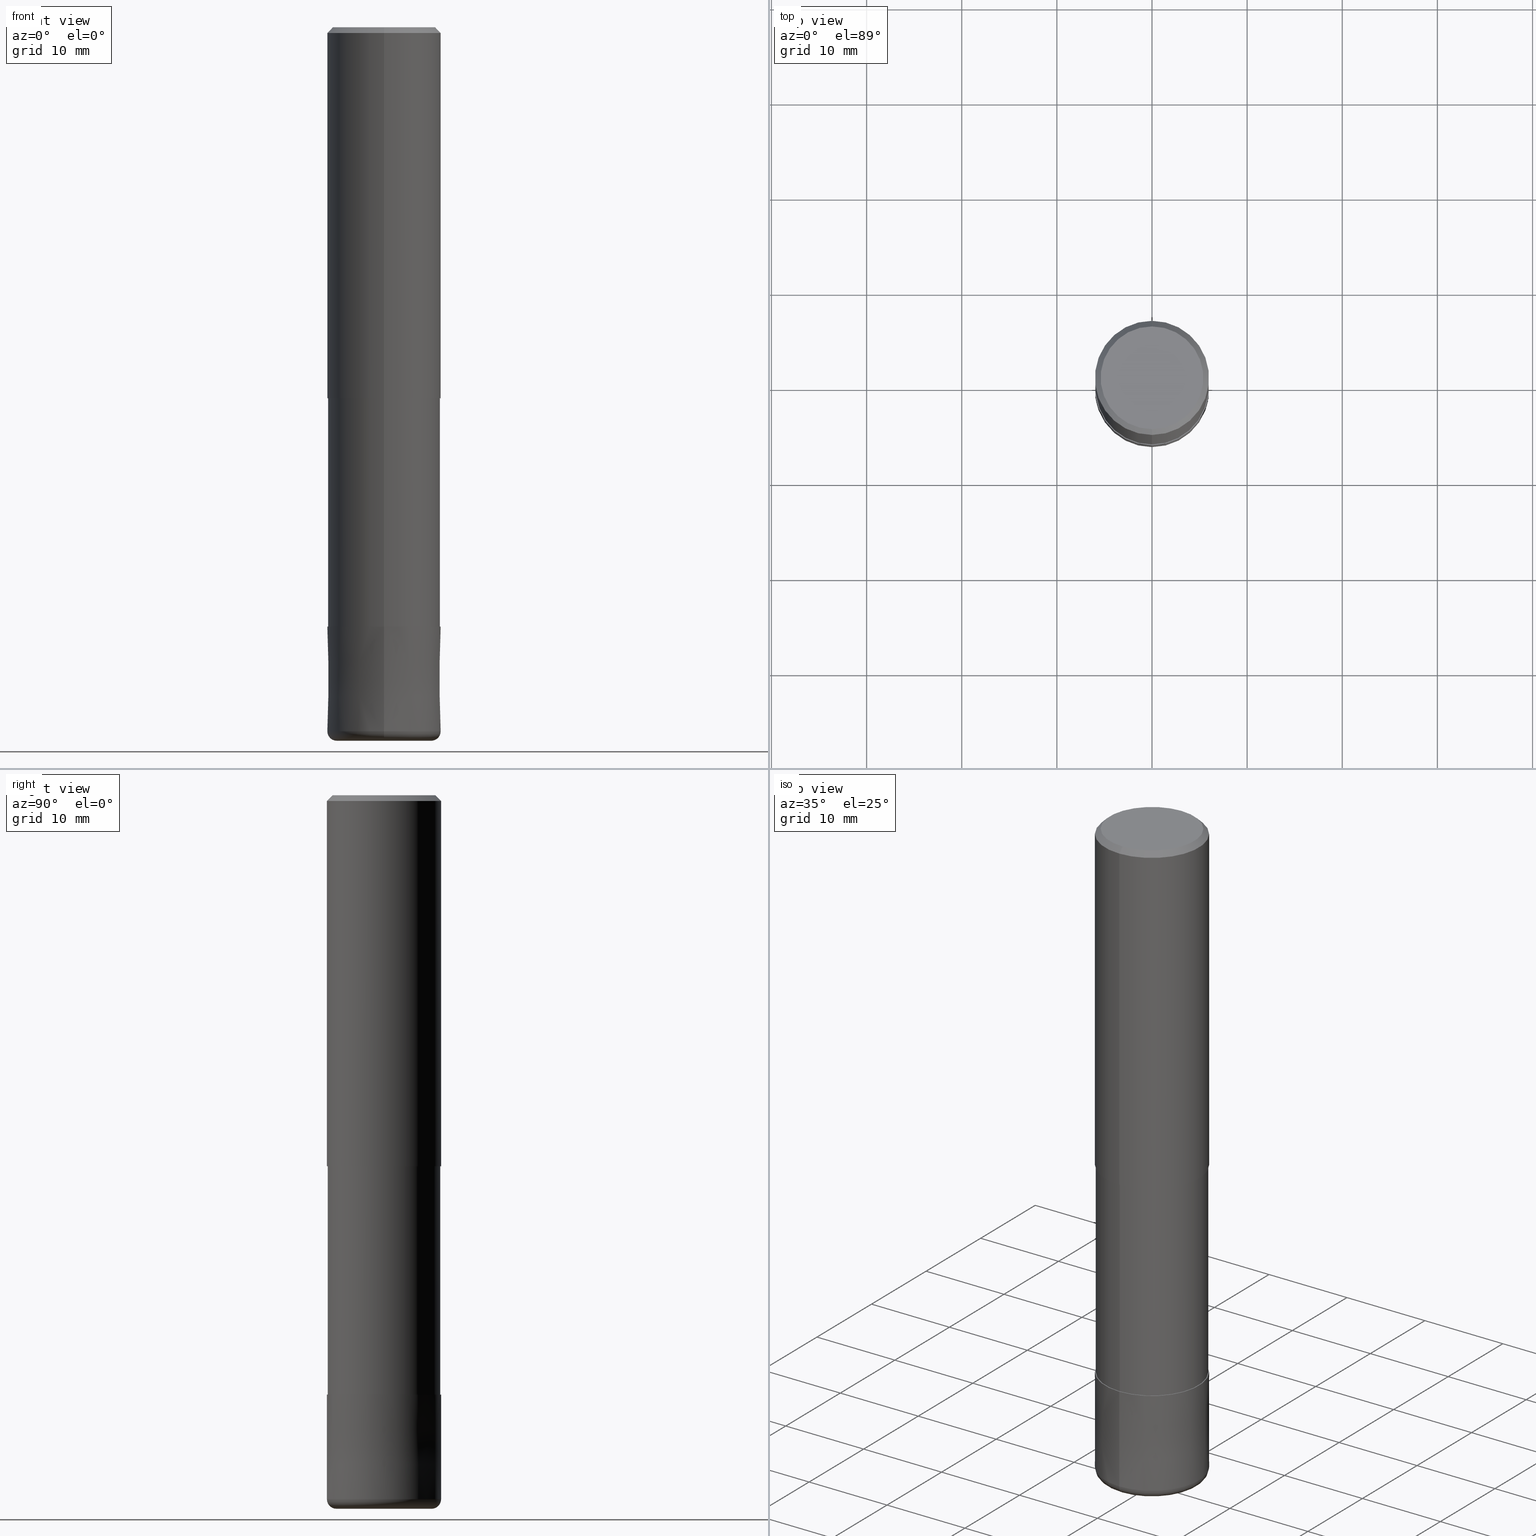
[diagram: canonical four-view strip — front | top / right | iso, engineering-drawing reading convention]
A machine part, canonical four-view strip (front | top / right | iso — engineering-drawing reading convention). The complete STEP part file that produces these views, byte-faithful:
ISO-10303-21;
HEADER;
FILE_DESCRIPTION(('no description'),'unknown implementation level');
FILE_NAME('HRRS4120-10-36S-Huellk.stp','  ',('CIMSOURCE GmbH'),('CADClick - KiM GmbH - www.kimweb.de'),'unknown preprocess','ACIS','unknown authorization');
FILE_SCHEMA(('automotive_design'));
ENDSEC;
DATA;
#1=MECHANICAL_DESIGN_GEOMETRIC_PRESENTATION_REPRESENTATION(' ',(#14,#15,#16,#17,#18,#19,#20,#21,#22,#23,#24,#25,#26,#27,#28,#29,#30,#31,#32,#33,#34,#35,#36,#37,#38,#39,#40,#41,#42,#43,#44,#45,#46,#47,#48,#49,#50,#51,#52,#53,#54,#55,#56,#57,#58,#59,#60,#61,#62,#63,#64,#65,#66,#67,#68,#69,#70,#71,#72),#10);
#2=PRODUCT_DEFINITION_CONTEXT('',#73,'design');
#3=APPLICATION_PROTOCOL_DEFINITION('INTERNATIONAL STANDARD','automotive_design',1994,#73);
#4=PRODUCT_CATEGORY_RELATIONSHIP('NONE','NONE',#74,#75);
#5=SHAPE_DEFINITION_REPRESENTATION(#76,#77);
#6=PRODUCT_DEFINITION_CONTEXT('',#78,'design');
#7=APPLICATION_PROTOCOL_DEFINITION('INTERNATIONAL STANDARD','automotive_design',1994,#78);
#8=PRODUCT_CATEGORY_RELATIONSHIP('NONE','NONE',#79,#80);
#9=SHAPE_DEFINITION_REPRESENTATION(#81,#82);
#10= (GEOMETRIC_REPRESENTATION_CONTEXT(3)GLOBAL_UNCERTAINTY_ASSIGNED_CONTEXT((#85))GLOBAL_UNIT_ASSIGNED_CONTEXT((#87,#88,#89))REPRESENTATION_CONTEXT('NONE','WORKSPACE'));
#14=STYLED_ITEM('',(#91),#92);
#15=STYLED_ITEM('',(#93),#94);
#16=STYLED_ITEM('',(#95),#96);
#17=STYLED_ITEM('',(#97),#98);
#18=STYLED_ITEM('',(#99),#100);
#19=STYLED_ITEM('',(#101),#102);
#20=STYLED_ITEM('',(#103),#104);
#21=STYLED_ITEM('',(#105),#106);
#22=STYLED_ITEM('',(#107),#108);
#23=STYLED_ITEM('',(#109),#110);
#24=STYLED_ITEM('',(#111),#112);
#25=STYLED_ITEM('',(#113),#114);
#26=STYLED_ITEM('',(#115),#116);
#27=STYLED_ITEM('',(#117),#118);
#28=STYLED_ITEM('',(#119),#120);
#29=STYLED_ITEM('',(#121),#122);
#30=STYLED_ITEM('',(#123),#124);
#31=STYLED_ITEM('',(#125),#126);
#32=STYLED_ITEM('',(#127),#128);
#33=STYLED_ITEM('',(#129),#130);
#34=STYLED_ITEM('',(#131),#132);
#35=STYLED_ITEM('',(#133),#134);
#36=STYLED_ITEM('',(#135),#136);
#37=STYLED_ITEM('',(#137),#138);
#38=STYLED_ITEM('',(#139),#140);
#39=STYLED_ITEM('',(#141),#142);
#40=STYLED_ITEM('',(#143),#144);
#41=STYLED_ITEM('',(#145),#146);
#42=STYLED_ITEM('',(#147),#148);
#43=STYLED_ITEM('',(#149),#150);
#44=STYLED_ITEM('',(#151),#152);
#45=STYLED_ITEM('',(#153),#154);
#46=STYLED_ITEM('',(#155),#156);
#47=STYLED_ITEM('',(#157),#158);
#48=STYLED_ITEM('',(#159),#160);
#49=STYLED_ITEM('',(#161),#162);
#50=STYLED_ITEM('',(#163),#164);
#51=STYLED_ITEM('',(#165),#166);
#52=STYLED_ITEM('',(#167),#168);
#53=STYLED_ITEM('',(#169),#170);
#54=STYLED_ITEM('',(#171),#172);
#55=STYLED_ITEM('',(#173),#174);
#56=STYLED_ITEM('',(#175),#176);
#57=STYLED_ITEM('',(#177),#178);
#58=STYLED_ITEM('',(#179),#180);
#59=STYLED_ITEM('',(#181),#182);
#60=STYLED_ITEM('',(#183),#184);
#61=STYLED_ITEM('',(#185),#186);
#62=STYLED_ITEM('',(#187),#188);
#63=STYLED_ITEM('',(#189),#190);
#64=STYLED_ITEM('',(#191),#192);
#65=STYLED_ITEM('',(#193),#194);
#66=STYLED_ITEM('',(#195),#196);
#67=STYLED_ITEM('',(#197),#198);
#68=STYLED_ITEM('',(#199),#200);
#69=STYLED_ITEM('',(#201),#202);
#70=STYLED_ITEM('',(#203),#204);
#71=STYLED_ITEM('',(#205),#206);
#72=STYLED_ITEM('',(#207),#208);
#73=APPLICATION_CONTEXT(' ');
#74=PRODUCT_CATEGORY('part','NONE');
#75=PRODUCT_RELATED_PRODUCT_CATEGORY('detail',' ',(#209));
#76=PRODUCT_DEFINITION_SHAPE('NONE','NONE',#210);
#77=ADVANCED_BREP_SHAPE_REPRESENTATION('1',(#164,#211),#10);
#78=APPLICATION_CONTEXT(' ');
#79=PRODUCT_CATEGORY('part','NONE');
#80=PRODUCT_RELATED_PRODUCT_CATEGORY('detail',' ',(#212));
#81=PRODUCT_DEFINITION_SHAPE('NONE','NONE',#213);
#82=ADVANCED_BREP_SHAPE_REPRESENTATION('2',(#124,#214),#10);
#85=UNCERTAINTY_MEASURE_WITH_UNIT(LENGTH_MEASURE(1.0E-006),#87,'','');
#87= (CONVERSION_BASED_UNIT('MILLIMETRE',#217)LENGTH_UNIT()NAMED_UNIT(#220));
#88= (NAMED_UNIT(#222)PLANE_ANGLE_UNIT()SI_UNIT($,.RADIAN.));
#89= (NAMED_UNIT(#222)SOLID_ANGLE_UNIT()SI_UNIT($,.STERADIAN.));
#91=PRESENTATION_STYLE_ASSIGNMENT((#228));
#92=EDGE_CURVE('',#118,#192,#229,.T.);
#93=PRESENTATION_STYLE_ASSIGNMENT((#230));
#94=ADVANCED_FACE('',(#231),#232,.T.);
#95=PRESENTATION_STYLE_ASSIGNMENT((#233));
#96=EDGE_CURVE('',#168,#206,#234,.T.);
#97=PRESENTATION_STYLE_ASSIGNMENT((#235));
#98=VERTEX_POINT('',#236);
#99=PRESENTATION_STYLE_ASSIGNMENT((#237));
#100=VERTEX_POINT('',#238);
#101=PRESENTATION_STYLE_ASSIGNMENT((#239));
#102=EDGE_CURVE('',#114,#110,#240,.T.);
#103=PRESENTATION_STYLE_ASSIGNMENT((#241));
#104=EDGE_CURVE('',#152,#144,#242,.T.);
#105=PRESENTATION_STYLE_ASSIGNMENT((#243));
#106=ADVANCED_FACE('',(#244),#245,.T.);
#107=PRESENTATION_STYLE_ASSIGNMENT((#246));
#108=ADVANCED_FACE('',(#247),#248,.T.);
#109=PRESENTATION_STYLE_ASSIGNMENT((#249));
#110=VERTEX_POINT('',#250);
#111=PRESENTATION_STYLE_ASSIGNMENT((#251));
#112=EDGE_CURVE('',#184,#100,#252,.T.);
#113=PRESENTATION_STYLE_ASSIGNMENT((#253));
#114=VERTEX_POINT('',#254);
#115=PRESENTATION_STYLE_ASSIGNMENT((#255));
#116=ADVANCED_FACE('',(#256),#257,.T.);
#117=PRESENTATION_STYLE_ASSIGNMENT((#258));
#118=VERTEX_POINT('',#259);
#119=PRESENTATION_STYLE_ASSIGNMENT((#260));
#120=EDGE_CURVE('',#152,#98,#261,.T.);
#121=PRESENTATION_STYLE_ASSIGNMENT((#262));
#122=VERTEX_POINT('',#263);
#123=PRESENTATION_STYLE_ASSIGNMENT((#264));
#124=MANIFOLD_SOLID_BREP('2',#265);
#125=PRESENTATION_STYLE_ASSIGNMENT((#266));
#126=ADVANCED_FACE('',(#267),#268,.T.);
#127=PRESENTATION_STYLE_ASSIGNMENT((#269));
#128=EDGE_CURVE('',#182,#110,#270,.T.);
#129=PRESENTATION_STYLE_ASSIGNMENT((#271));
#130=ADVANCED_FACE('',(#272),#273,.T.);
#131=PRESENTATION_STYLE_ASSIGNMENT((#274));
#132=EDGE_CURVE('',#122,#118,#275,.T.);
#133=PRESENTATION_STYLE_ASSIGNMENT((#276));
#134=ADVANCED_FACE('',(#277),#278,.T.);
#135=PRESENTATION_STYLE_ASSIGNMENT((#279));
#136=EDGE_CURVE('',#98,#160,#280,.T.);
#137=PRESENTATION_STYLE_ASSIGNMENT((#281));
#138=EDGE_CURVE('',#144,#152,#282,.T.);
#139=PRESENTATION_STYLE_ASSIGNMENT((#283));
#140=ADVANCED_FACE('',(#284),#285,.T.);
#141=PRESENTATION_STYLE_ASSIGNMENT((#286));
#142=ADVANCED_FACE('',(#287,#288),#289,.T.);
#143=PRESENTATION_STYLE_ASSIGNMENT((#290));
#144=VERTEX_POINT('',#291);
#145=PRESENTATION_STYLE_ASSIGNMENT((#292));
#146=ADVANCED_FACE('',(#293),#294,.T.);
#147=PRESENTATION_STYLE_ASSIGNMENT((#295));
#148=EDGE_CURVE('',#114,#192,#296,.T.);
#149=PRESENTATION_STYLE_ASSIGNMENT((#297));
#150=ADVANCED_FACE('',(#298),#299,.T.);
#151=PRESENTATION_STYLE_ASSIGNMENT((#300));
#152=VERTEX_POINT('',#301);
#153=PRESENTATION_STYLE_ASSIGNMENT((#302));
#154=EDGE_CURVE('',#178,#206,#303,.T.);
#155=PRESENTATION_STYLE_ASSIGNMENT((#304));
#156=ADVANCED_FACE('',(#305),#306,.T.);
#157=PRESENTATION_STYLE_ASSIGNMENT((#307));
#158=EDGE_CURVE('',#100,#152,#308,.T.);
#159=PRESENTATION_STYLE_ASSIGNMENT((#309));
#160=VERTEX_POINT('',#310);
#161=PRESENTATION_STYLE_ASSIGNMENT((#311));
#162=EDGE_CURVE('',#192,#182,#312,.T.);
#163=PRESENTATION_STYLE_ASSIGNMENT((#313));
#164=MANIFOLD_SOLID_BREP('1',#314);
#165=PRESENTATION_STYLE_ASSIGNMENT((#315));
#166=ADVANCED_FACE('',(#316),#317,.T.);
#167=PRESENTATION_STYLE_ASSIGNMENT((#318));
#168=VERTEX_POINT('',#319);
#169=PRESENTATION_STYLE_ASSIGNMENT((#320));
#170=ADVANCED_FACE('',(#321),#322,.T.);
#171=PRESENTATION_STYLE_ASSIGNMENT((#323));
#172=VERTEX_POINT('',#324);
#173=PRESENTATION_STYLE_ASSIGNMENT((#325));
#174=EDGE_CURVE('',#160,#98,#326,.T.);
#175=PRESENTATION_STYLE_ASSIGNMENT((#327));
#176=EDGE_CURVE('',#206,#168,#328,.T.);
#177=PRESENTATION_STYLE_ASSIGNMENT((#329));
#178=VERTEX_POINT('',#330);
#179=PRESENTATION_STYLE_ASSIGNMENT((#331));
#180=EDGE_CURVE('',#182,#122,#332,.T.);
#181=PRESENTATION_STYLE_ASSIGNMENT((#333));
#182=VERTEX_POINT('',#334);
#183=PRESENTATION_STYLE_ASSIGNMENT((#335));
#184=VERTEX_POINT('',#336);
#185=PRESENTATION_STYLE_ASSIGNMENT((#337));
#186=ADVANCED_FACE('',(#338),#339,.T.);
#187=PRESENTATION_STYLE_ASSIGNMENT((#340));
#188=EDGE_CURVE('',#110,#114,#341,.T.);
#189=PRESENTATION_STYLE_ASSIGNMENT((#342));
#190=EDGE_CURVE('',#178,#172,#343,.T.);
#191=PRESENTATION_STYLE_ASSIGNMENT((#344));
#192=VERTEX_POINT('',#345);
#193=PRESENTATION_STYLE_ASSIGNMENT((#346));
#194=EDGE_CURVE('',#168,#172,#347,.T.);
#195=PRESENTATION_STYLE_ASSIGNMENT((#348));
#196=EDGE_CURVE('',#182,#192,#349,.T.);
#197=PRESENTATION_STYLE_ASSIGNMENT((#350));
#198=EDGE_CURVE('',#160,#144,#351,.T.);
#199=PRESENTATION_STYLE_ASSIGNMENT((#352));
#200=EDGE_CURVE('',#172,#178,#353,.T.);
#201=PRESENTATION_STYLE_ASSIGNMENT((#354));
#202=EDGE_CURVE('',#100,#184,#355,.T.);
#203=PRESENTATION_STYLE_ASSIGNMENT((#356));
#204=EDGE_CURVE('',#118,#122,#357,.T.);
#205=PRESENTATION_STYLE_ASSIGNMENT((#358));
#206=VERTEX_POINT('',#359);
#207=PRESENTATION_STYLE_ASSIGNMENT((#360));
#208=EDGE_CURVE('',#144,#184,#361,.T.);
#209=PRODUCT('1','1','PART-1-DESC',(#362));
#210=PRODUCT_DEFINITION('NONE','NONE',#363,#2);
#211=AXIS2_PLACEMENT_3D('',#364,#365,#366);
#212=PRODUCT('2','2','PART-2-DESC',(#367));
#213=PRODUCT_DEFINITION('NONE','NONE',#368,#6);
#214=AXIS2_PLACEMENT_3D('',#369,#370,#371);
#217=LENGTH_MEASURE_WITH_UNIT(LENGTH_MEASURE(1.0),#372);
#220=DIMENSIONAL_EXPONENTS(1.0,0.0,0.0,0.0,0.0,0.0,0.0);
#222=DIMENSIONAL_EXPONENTS(0.0,0.0,0.0,0.0,0.0,0.0,0.0);
#228=CURVE_STYLE('',#373,POSITIVE_LENGTH_MEASURE(1.0E-006),#374);
#229=LINE('',#375,#376);
#230=SURFACE_STYLE_USAGE(.BOTH.,#377);
#231=FACE_OUTER_BOUND('',#378,.T.);
#232=PLANE('',#379);
#233=CURVE_STYLE('',#380,POSITIVE_LENGTH_MEASURE(1.0E-006),#381);
#234=CIRCLE('',#382,5.90995);
#235=POINT_STYLE(' ',#383,POSITIVE_LENGTH_MEASURE(1.0E-006),#384);
#236=CARTESIAN_POINT('',(6.61287431064084E-016,-5.4,0.0));
#237=POINT_STYLE(' ',#385,POSITIVE_LENGTH_MEASURE(1.0E-006),#386);
#238=CARTESIAN_POINT('',(7.34763812293426E-016,-6.0,-39.0));
#239=CURVE_STYLE('',#387,POSITIVE_LENGTH_MEASURE(1.0E-006),#388);
#240=CIRCLE('',#389,5.0);
#241=CURVE_STYLE('',#390,POSITIVE_LENGTH_MEASURE(1.0E-006),#391);
#242=CIRCLE('',#392,6.0);
#243=SURFACE_STYLE_USAGE(.BOTH.,#393);
#244=FACE_OUTER_BOUND('',#394,.T.);
#245=PLANE('',#395);
#246=SURFACE_STYLE_USAGE(.BOTH.,#396);
#247=FACE_OUTER_BOUND('',#397,.T.);
#248=TOROIDAL_SURFACE('',#398,5.0,1.0);
#249=POINT_STYLE(' ',#399,POSITIVE_LENGTH_MEASURE(1.0E-006),#400);
#250=CARTESIAN_POINT('',(6.12303176911189E-016,-5.0,-75.0));
#251=CURVE_STYLE('',#401,POSITIVE_LENGTH_MEASURE(1.0E-006),#402);
#252=CIRCLE('',#403,6.0);
#253=POINT_STYLE(' ',#404,POSITIVE_LENGTH_MEASURE(1.0E-006),#405);
#254=CARTESIAN_POINT('',(0.0,5.0,-75.0));
#255=SURFACE_STYLE_USAGE(.BOTH.,#406);
#256=FACE_OUTER_BOUND('',#407,.T.);
#257=CYLINDRICAL_SURFACE('',#408,6.0);
#258=POINT_STYLE(' ',#409,POSITIVE_LENGTH_MEASURE(1.0E-006),#410);
#259=CARTESIAN_POINT('',(0.0,5.9999,-63.0));
#260=CURVE_STYLE('',#411,POSITIVE_LENGTH_MEASURE(1.0E-006),#412);
#261=LINE('',#413,#414);
#262=POINT_STYLE(' ',#415,POSITIVE_LENGTH_MEASURE(1.0E-006),#416);
#263=CARTESIAN_POINT('',(7.34751566229888E-016,-5.9999,-63.0));
#264=SURFACE_STYLE_USAGE(.BOTH.,#417);
#265=CLOSED_SHELL('',(#108,#126,#170,#140,#166,#146));
#266=SURFACE_STYLE_USAGE(.BOTH.,#418);
#267=FACE_OUTER_BOUND('',#419,.T.);
#268=CONICAL_SURFACE('',#420,5.99995,9.09090909063747E-006);
#269=CURVE_STYLE('',#421,POSITIVE_LENGTH_MEASURE(1.0E-006),#422);
#270=CIRCLE('',#423,1.0);
#271=SURFACE_STYLE_USAGE(.BOTH.,#424);
#272=FACE_OUTER_BOUND('',#425,.T.);
#273=CONICAL_SURFACE('',#426,5.7,0.785398163397447);
#274=CURVE_STYLE('',#427,POSITIVE_LENGTH_MEASURE(1.0E-006),#428);
#275=CIRCLE('',#429,5.9999);
#276=SURFACE_STYLE_USAGE(.BOTH.,#430);
#277=FACE_OUTER_BOUND('',#431,.T.);
#278=CYLINDRICAL_SURFACE('',#432,5.90995);
#279=CURVE_STYLE('',#433,POSITIVE_LENGTH_MEASURE(1.0E-006),#434);
#280=CIRCLE('',#435,5.4);
#281=CURVE_STYLE('',#436,POSITIVE_LENGTH_MEASURE(1.0E-006),#437);
#282=CIRCLE('',#438,6.0);
#283=SURFACE_STYLE_USAGE(.BOTH.,#439);
#284=FACE_OUTER_BOUND('',#440,.T.);
#285=CONICAL_SURFACE('',#441,5.99995,9.09090909063747E-006);
#286=SURFACE_STYLE_USAGE(.BOTH.,#442);
#287=FACE_OUTER_BOUND('',#443,.T.);
#288=FACE_BOUND('',#444,.T.);
#289=PLANE('',#445);
#290=POINT_STYLE(' ',#446,POSITIVE_LENGTH_MEASURE(1.0E-006),#447);
#291=CARTESIAN_POINT('',(0.0,6.0,-0.600000000000001));
#292=SURFACE_STYLE_USAGE(.BOTH.,#448);
#293=FACE_OUTER_BOUND('',#449,.T.);
#294=PLANE('',#450);
#295=CURVE_STYLE('',#451,POSITIVE_LENGTH_MEASURE(1.0E-006),#452);
#296=CIRCLE('',#453,1.0);
#297=SURFACE_STYLE_USAGE(.BOTH.,#454);
#298=FACE_OUTER_BOUND('',#455,.T.);
#299=CYLINDRICAL_SURFACE('',#456,6.0);
#300=POINT_STYLE(' ',#457,POSITIVE_LENGTH_MEASURE(1.0E-006),#458);
#301=CARTESIAN_POINT('',(7.34763812293426E-016,-6.0,-0.600000000000001));
#302=CURVE_STYLE('',#459,POSITIVE_LENGTH_MEASURE(1.0E-006),#460);
#303=LINE('',#461,#462);
#304=SURFACE_STYLE_USAGE(.BOTH.,#463);
#305=FACE_OUTER_BOUND('',#464,.T.);
#306=CONICAL_SURFACE('',#465,5.7,0.785398163397447);
#307=CURVE_STYLE('',#466,POSITIVE_LENGTH_MEASURE(1.0E-006),#467);
#308=LINE('',#468,#469);
#309=POINT_STYLE(' ',#470,POSITIVE_LENGTH_MEASURE(1.0E-006),#471);
#310=CARTESIAN_POINT('',(0.0,5.4,0.0));
#311=CURVE_STYLE('',#472,POSITIVE_LENGTH_MEASURE(1.0E-006),#473);
#312=CIRCLE('',#474,6.0);
#313=SURFACE_STYLE_USAGE(.BOTH.,#475);
#314=CLOSED_SHELL('',(#186,#150,#130,#142,#106,#156,#116,#134,#94));
#315=SURFACE_STYLE_USAGE(.BOTH.,#476);
#316=FACE_OUTER_BOUND('',#477,.T.);
#317=TOROIDAL_SURFACE('',#478,5.0,1.0);
#318=POINT_STYLE(' ',#479,POSITIVE_LENGTH_MEASURE(1.0E-006),#480);
#319=CARTESIAN_POINT('',(0.0,5.90995,-39.0));
#320=SURFACE_STYLE_USAGE(.BOTH.,#481);
#321=FACE_OUTER_BOUND('',#482,.T.);
#322=PLANE('',#483);
#323=POINT_STYLE(' ',#484,POSITIVE_LENGTH_MEASURE(1.0E-006),#485);
#324=CARTESIAN_POINT('',(0.0,5.90995,-63.0));
#325=CURVE_STYLE('',#486,POSITIVE_LENGTH_MEASURE(1.0E-006),#487);
#326=CIRCLE('',#488,5.4);
#327=CURVE_STYLE('',#489,POSITIVE_LENGTH_MEASURE(1.0E-006),#490);
#328=CIRCLE('',#491,5.90995);
#329=POINT_STYLE(' ',#492,POSITIVE_LENGTH_MEASURE(1.0E-006),#493);
#330=CARTESIAN_POINT('',(7.23736232077256E-016,-5.90995,-63.0));
#331=CURVE_STYLE('',#494,POSITIVE_LENGTH_MEASURE(1.0E-006),#495);
#332=LINE('',#496,#497);
#333=POINT_STYLE(' ',#498,POSITIVE_LENGTH_MEASURE(1.0E-006),#499);
#334=CARTESIAN_POINT('',(7.34763812293426E-016,-6.0,-74.0));
#335=POINT_STYLE(' ',#500,POSITIVE_LENGTH_MEASURE(1.0E-006),#501);
#336=CARTESIAN_POINT('',(0.0,6.0,-39.0));
#337=SURFACE_STYLE_USAGE(.BOTH.,#502);
#338=FACE_OUTER_BOUND('',#503,.T.);
#339=CYLINDRICAL_SURFACE('',#504,5.90995);
#340=CURVE_STYLE('',#505,POSITIVE_LENGTH_MEASURE(1.0E-006),#506);
#341=CIRCLE('',#507,5.0);
#342=CURVE_STYLE('',#508,POSITIVE_LENGTH_MEASURE(1.0E-006),#509);
#343=CIRCLE('',#510,5.90995);
#344=POINT_STYLE(' ',#511,POSITIVE_LENGTH_MEASURE(1.0E-006),#512);
#345=CARTESIAN_POINT('',(0.0,6.0,-74.0));
#346=CURVE_STYLE('',#513,POSITIVE_LENGTH_MEASURE(1.0E-006),#514);
#347=LINE('',#515,#516);
#348=CURVE_STYLE('',#517,POSITIVE_LENGTH_MEASURE(1.0E-006),#518);
#349=CIRCLE('',#519,6.0);
#350=CURVE_STYLE('',#520,POSITIVE_LENGTH_MEASURE(1.0E-006),#521);
#351=LINE('',#522,#523);
#352=CURVE_STYLE('',#524,POSITIVE_LENGTH_MEASURE(1.0E-006),#525);
#353=CIRCLE('',#526,5.90995);
#354=CURVE_STYLE('',#527,POSITIVE_LENGTH_MEASURE(1.0E-006),#528);
#355=CIRCLE('',#529,6.0);
#356=CURVE_STYLE('',#530,POSITIVE_LENGTH_MEASURE(1.0E-006),#531);
#357=CIRCLE('',#532,5.9999);
#358=POINT_STYLE(' ',#533,POSITIVE_LENGTH_MEASURE(1.0E-006),#534);
#359=CARTESIAN_POINT('',(7.23736232077256E-016,-5.90995,-39.0));
#360=CURVE_STYLE('',#535,POSITIVE_LENGTH_MEASURE(1.0E-006),#536);
#361=LINE('',#537,#538);
#362=PRODUCT_CONTEXT('',#73,'mechanical');
#363=PRODUCT_DEFINITION_FORMATION_WITH_SPECIFIED_SOURCE(' ','NONE',#209,.NOT_KNOWN.);
#364=CARTESIAN_POINT('',(0.0,0.0,0.0));
#365=DIRECTION('',(0.0,0.0,1.0));
#366=DIRECTION('',(1.0,0.0,0.0));
#367=PRODUCT_CONTEXT('',#78,'mechanical');
#368=PRODUCT_DEFINITION_FORMATION_WITH_SPECIFIED_SOURCE(' ','NONE',#212,.NOT_KNOWN.);
#369=CARTESIAN_POINT('',(0.0,0.0,0.0));
#370=DIRECTION('',(0.0,0.0,1.0));
#371=DIRECTION('',(1.0,0.0,0.0));
#372= (NAMED_UNIT(#220)LENGTH_UNIT()SI_UNIT(.MILLI.,.METRE.));
#373=DRAUGHTING_PRE_DEFINED_CURVE_FONT('continuous');
#374=COLOUR_RGB('',0.800000011920929,0.800000011920929,0.800000011920929);
#375=CARTESIAN_POINT('',(-7.34757689261658E-016,5.99995,-68.5));
#376=VECTOR('',#540,1.0);
#377=SURFACE_SIDE_STYLE('',(#541));
#378=EDGE_LOOP('',(#542,#543));
#379=AXIS2_PLACEMENT_3D('',#544,#545,#546);
#380=DRAUGHTING_PRE_DEFINED_CURVE_FONT('continuous');
#381=COLOUR_RGB('',0.498039215803146,0.498039215803146,0.498039215803146);
#382=AXIS2_PLACEMENT_3D('',#547,#548,#549);
#383=PRE_DEFINED_MARKER('');
#384=COLOUR_RGB('',0.498039215803146,0.498039215803146,0.498039215803146);
#385=PRE_DEFINED_MARKER('');
#386=COLOUR_RGB('',0.498039215803146,0.498039215803146,0.498039215803146);
#387=DRAUGHTING_PRE_DEFINED_CURVE_FONT('continuous');
#388=COLOUR_RGB('',0.800000011920929,0.800000011920929,0.800000011920929);
#389=AXIS2_PLACEMENT_3D('',#550,#551,#552);
#390=DRAUGHTING_PRE_DEFINED_CURVE_FONT('continuous');
#391=COLOUR_RGB('',0.498039215803146,0.498039215803146,0.498039215803146);
#392=AXIS2_PLACEMENT_3D('',#553,#554,#555);
#393=SURFACE_SIDE_STYLE('',(#556));
#394=EDGE_LOOP('',(#557,#558));
#395=AXIS2_PLACEMENT_3D('',#559,#560,#561);
#396=SURFACE_SIDE_STYLE('',(#562));
#397=EDGE_LOOP('',(#563,#564,#565,#566));
#398=AXIS2_PLACEMENT_3D('',#567,#568,#569);
#399=PRE_DEFINED_MARKER('');
#400=COLOUR_RGB('',0.800000011920929,0.800000011920929,0.800000011920929);
#401=DRAUGHTING_PRE_DEFINED_CURVE_FONT('continuous');
#402=COLOUR_RGB('',0.498039215803146,0.498039215803146,0.498039215803146);
#403=AXIS2_PLACEMENT_3D('',#570,#571,#572);
#404=PRE_DEFINED_MARKER('');
#405=COLOUR_RGB('',0.800000011920929,0.800000011920929,0.800000011920929);
#406=SURFACE_SIDE_STYLE('',(#573));
#407=EDGE_LOOP('',(#574,#575,#576,#577));
#408=AXIS2_PLACEMENT_3D('',#578,#579,#580);
#409=PRE_DEFINED_MARKER('');
#410=COLOUR_RGB('',0.800000011920929,0.800000011920929,0.800000011920929);
#411=DRAUGHTING_PRE_DEFINED_CURVE_FONT('continuous');
#412=COLOUR_RGB('',0.498039215803146,0.498039215803146,0.498039215803146);
#413=CARTESIAN_POINT('',(6.98025621678755E-016,-5.7,-0.300000000000004));
#414=VECTOR('',#581,1.0);
#415=PRE_DEFINED_MARKER('');
#416=COLOUR_RGB('',0.800000011920929,0.800000011920929,0.800000011920929);
#417=SURFACE_SIDE_STYLE('',(#582));
#418=SURFACE_SIDE_STYLE('',(#583));
#419=EDGE_LOOP('',(#584,#585,#586,#587));
#420=AXIS2_PLACEMENT_3D('',#588,#589,#590);
#421=DRAUGHTING_PRE_DEFINED_CURVE_FONT('continuous');
#422=COLOUR_RGB('',0.800000011920929,0.800000011920929,0.800000011920929);
#423=AXIS2_PLACEMENT_3D('',#591,#592,#593);
#424=SURFACE_SIDE_STYLE('',(#594));
#425=EDGE_LOOP('',(#595,#596,#597,#598));
#426=AXIS2_PLACEMENT_3D('',#599,#600,#601);
#427=DRAUGHTING_PRE_DEFINED_CURVE_FONT('continuous');
#428=COLOUR_RGB('',0.800000011920929,0.800000011920929,0.800000011920929);
#429=AXIS2_PLACEMENT_3D('',#602,#603,#604);
#430=SURFACE_SIDE_STYLE('',(#605));
#431=EDGE_LOOP('',(#606,#607,#608,#609));
#432=AXIS2_PLACEMENT_3D('',#610,#611,#612);
#433=DRAUGHTING_PRE_DEFINED_CURVE_FONT('continuous');
#434=COLOUR_RGB('',0.498039215803146,0.498039215803146,0.498039215803146);
#435=AXIS2_PLACEMENT_3D('',#613,#614,#615);
#436=DRAUGHTING_PRE_DEFINED_CURVE_FONT('continuous');
#437=COLOUR_RGB('',0.498039215803146,0.498039215803146,0.498039215803146);
#438=AXIS2_PLACEMENT_3D('',#616,#617,#618);
#439=SURFACE_SIDE_STYLE('',(#619));
#440=EDGE_LOOP('',(#620,#621,#622,#623));
#441=AXIS2_PLACEMENT_3D('',#624,#625,#626);
#442=SURFACE_SIDE_STYLE('',(#627));
#443=EDGE_LOOP('',(#628,#629));
#444=EDGE_LOOP('',(#630,#631));
#445=AXIS2_PLACEMENT_3D('',#632,#633,#634);
#446=PRE_DEFINED_MARKER('');
#447=COLOUR_RGB('',0.498039215803146,0.498039215803146,0.498039215803146);
#448=SURFACE_SIDE_STYLE('',(#635));
#449=EDGE_LOOP('',(#636,#637));
#450=AXIS2_PLACEMENT_3D('',#638,#639,#640);
#451=DRAUGHTING_PRE_DEFINED_CURVE_FONT('continuous');
#452=COLOUR_RGB('',0.800000011920929,0.800000011920929,0.800000011920929);
#453=AXIS2_PLACEMENT_3D('',#641,#642,#643);
#454=SURFACE_SIDE_STYLE('',(#644));
#455=EDGE_LOOP('',(#645,#646,#647,#648));
#456=AXIS2_PLACEMENT_3D('',#649,#650,#651);
#457=PRE_DEFINED_MARKER('');
#458=COLOUR_RGB('',0.498039215803146,0.498039215803146,0.498039215803146);
#459=DRAUGHTING_PRE_DEFINED_CURVE_FONT('continuous');
#460=COLOUR_RGB('',0.498039215803146,0.498039215803146,0.498039215803146);
#461=CARTESIAN_POINT('',(7.23736232077256E-016,-5.90995,-51.0));
#462=VECTOR('',#652,1.0);
#463=SURFACE_SIDE_STYLE('',(#653));
#464=EDGE_LOOP('',(#654,#655,#656,#657));
#465=AXIS2_PLACEMENT_3D('',#658,#659,#660);
#466=DRAUGHTING_PRE_DEFINED_CURVE_FONT('continuous');
#467=COLOUR_RGB('',0.498039215803146,0.498039215803146,0.498039215803146);
#468=CARTESIAN_POINT('',(7.34763812293426E-016,-6.0,-19.8));
#469=VECTOR('',#661,1.0);
#470=PRE_DEFINED_MARKER('');
#471=COLOUR_RGB('',0.498039215803146,0.498039215803146,0.498039215803146);
#472=DRAUGHTING_PRE_DEFINED_CURVE_FONT('continuous');
#473=COLOUR_RGB('',0.800000011920929,0.800000011920929,0.800000011920929);
#474=AXIS2_PLACEMENT_3D('',#662,#663,#664);
#475=SURFACE_SIDE_STYLE('',(#665));
#476=SURFACE_SIDE_STYLE('',(#666));
#477=EDGE_LOOP('',(#667,#668,#669,#670));
#478=AXIS2_PLACEMENT_3D('',#671,#672,#673);
#479=PRE_DEFINED_MARKER('');
#480=COLOUR_RGB('',0.498039215803146,0.498039215803146,0.498039215803146);
#481=SURFACE_SIDE_STYLE('',(#674));
#482=EDGE_LOOP('',(#675,#676));
#483=AXIS2_PLACEMENT_3D('',#677,#678,#679);
#484=PRE_DEFINED_MARKER('');
#485=COLOUR_RGB('',0.498039215803146,0.498039215803146,0.498039215803146);
#486=DRAUGHTING_PRE_DEFINED_CURVE_FONT('continuous');
#487=COLOUR_RGB('',0.498039215803146,0.498039215803146,0.498039215803146);
#488=AXIS2_PLACEMENT_3D('',#680,#681,#682);
#489=DRAUGHTING_PRE_DEFINED_CURVE_FONT('continuous');
#490=COLOUR_RGB('',0.498039215803146,0.498039215803146,0.498039215803146);
#491=AXIS2_PLACEMENT_3D('',#683,#684,#685);
#492=PRE_DEFINED_MARKER('');
#493=COLOUR_RGB('',0.498039215803146,0.498039215803146,0.498039215803146);
#494=DRAUGHTING_PRE_DEFINED_CURVE_FONT('continuous');
#495=COLOUR_RGB('',0.800000011920929,0.800000011920929,0.800000011920929);
#496=CARTESIAN_POINT('',(7.34757689261657E-016,-5.99995,-68.5));
#497=VECTOR('',#686,1.0);
#498=PRE_DEFINED_MARKER('');
#499=COLOUR_RGB('',0.800000011920929,0.800000011920929,0.800000011920929);
#500=PRE_DEFINED_MARKER('');
#501=COLOUR_RGB('',0.498039215803146,0.498039215803146,0.498039215803146);
#502=SURFACE_SIDE_STYLE('',(#687));
#503=EDGE_LOOP('',(#688,#689,#690,#691));
#504=AXIS2_PLACEMENT_3D('',#692,#693,#694);
#505=DRAUGHTING_PRE_DEFINED_CURVE_FONT('continuous');
#506=COLOUR_RGB('',0.800000011920929,0.800000011920929,0.800000011920929);
#507=AXIS2_PLACEMENT_3D('',#695,#696,#697);
#508=DRAUGHTING_PRE_DEFINED_CURVE_FONT('continuous');
#509=COLOUR_RGB('',0.498039215803146,0.498039215803146,0.498039215803146);
#510=AXIS2_PLACEMENT_3D('',#698,#699,#700);
#511=PRE_DEFINED_MARKER('');
#512=COLOUR_RGB('',0.800000011920929,0.800000011920929,0.800000011920929);
#513=DRAUGHTING_PRE_DEFINED_CURVE_FONT('continuous');
#514=COLOUR_RGB('',0.498039215803146,0.498039215803146,0.498039215803146);
#515=CARTESIAN_POINT('',(-7.23736232077256E-016,5.90995,-51.0));
#516=VECTOR('',#701,1.0);
#517=DRAUGHTING_PRE_DEFINED_CURVE_FONT('continuous');
#518=COLOUR_RGB('',0.800000011920929,0.800000011920929,0.800000011920929);
#519=AXIS2_PLACEMENT_3D('',#702,#703,#704);
#520=DRAUGHTING_PRE_DEFINED_CURVE_FONT('continuous');
#521=COLOUR_RGB('',0.498039215803146,0.498039215803146,0.498039215803146);
#522=CARTESIAN_POINT('',(-6.98025621678755E-016,5.7,-0.300000000000004));
#523=VECTOR('',#705,1.0);
#524=DRAUGHTING_PRE_DEFINED_CURVE_FONT('continuous');
#525=COLOUR_RGB('',0.498039215803146,0.498039215803146,0.498039215803146);
#526=AXIS2_PLACEMENT_3D('',#706,#707,#708);
#527=DRAUGHTING_PRE_DEFINED_CURVE_FONT('continuous');
#528=COLOUR_RGB('',0.498039215803146,0.498039215803146,0.498039215803146);
#529=AXIS2_PLACEMENT_3D('',#709,#710,#711);
#530=DRAUGHTING_PRE_DEFINED_CURVE_FONT('continuous');
#531=COLOUR_RGB('',0.800000011920929,0.800000011920929,0.800000011920929);
#532=AXIS2_PLACEMENT_3D('',#712,#713,#714);
#533=PRE_DEFINED_MARKER('');
#534=COLOUR_RGB('',0.498039215803146,0.498039215803146,0.498039215803146);
#535=DRAUGHTING_PRE_DEFINED_CURVE_FONT('continuous');
#536=COLOUR_RGB('',0.498039215803146,0.498039215803146,0.498039215803146);
#537=CARTESIAN_POINT('',(-7.34763812293426E-016,6.0,-19.8));
#538=VECTOR('',#715,1.0);
#540=DIRECTION('',(-1.11327850342629E-021,9.09090909051225E-006,-0.999999999958678));
#541=SURFACE_STYLE_FILL_AREA(#716);
#542=ORIENTED_EDGE('',*,*,#200,.T.);
#543=ORIENTED_EDGE('',*,*,#190,.T.);
#544=CARTESIAN_POINT('',(0.0,2.954975,-63.0));
#545=DIRECTION('',(0.0,0.0,-1.0));
#546=DIRECTION('',(0.0,1.0,0.0));
#547=CARTESIAN_POINT('',(0.0,0.0,-39.0));
#548=DIRECTION('',(0.0,0.0,-1.0));
#549=DIRECTION('',(0.0,1.0,0.0));
#550=CARTESIAN_POINT('',(0.0,0.0,-75.0));
#551=DIRECTION('',(0.0,0.0,-1.0));
#552=DIRECTION('',(0.0,1.0,0.0));
#553=CARTESIAN_POINT('',(0.0,0.0,-0.600000000000001));
#554=DIRECTION('',(0.0,0.0,-1.0));
#555=DIRECTION('',(0.0,1.0,0.0));
#556=SURFACE_STYLE_FILL_AREA(#717);
#557=ORIENTED_EDGE('',*,*,#174,.F.);
#558=ORIENTED_EDGE('',*,*,#136,.F.);
#559=CARTESIAN_POINT('',(0.0,2.7,0.0));
#560=DIRECTION('',(-0.0,0.0,1.0));
#561=DIRECTION('',(0.0,-1.0,0.0));
#562=SURFACE_STYLE_FILL_AREA(#718);
#563=ORIENTED_EDGE('',*,*,#128,.F.);
#564=ORIENTED_EDGE('',*,*,#196,.T.);
#565=ORIENTED_EDGE('',*,*,#148,.F.);
#566=ORIENTED_EDGE('',*,*,#188,.F.);
#567=CARTESIAN_POINT('',(0.0,0.0,-74.0));
#568=DIRECTION('',(0.0,0.0,-1.0));
#569=DIRECTION('',(0.0,-1.0,0.0));
#570=CARTESIAN_POINT('',(0.0,0.0,-39.0));
#571=DIRECTION('',(0.0,0.0,-1.0));
#572=DIRECTION('',(0.0,1.0,0.0));
#573=SURFACE_STYLE_FILL_AREA(#719);
#574=ORIENTED_EDGE('',*,*,#208,.T.);
#575=ORIENTED_EDGE('',*,*,#202,.F.);
#576=ORIENTED_EDGE('',*,*,#158,.T.);
#577=ORIENTED_EDGE('',*,*,#104,.T.);
#578=CARTESIAN_POINT('',(0.0,0.0,-19.8));
#579=DIRECTION('',(-0.0,-0.0,1.0));
#580=DIRECTION('',(0.0,1.0,0.0));
#581=DIRECTION('',(-8.65927457071934E-017,0.707106781186546,0.707106781186549));
#582=SURFACE_STYLE_FILL_AREA(#720);
#583=SURFACE_STYLE_FILL_AREA(#721);
#584=ORIENTED_EDGE('',*,*,#92,.F.);
#585=ORIENTED_EDGE('',*,*,#204,.T.);
#586=ORIENTED_EDGE('',*,*,#180,.F.);
#587=ORIENTED_EDGE('',*,*,#162,.F.);
#588=CARTESIAN_POINT('',(0.0,0.0,-68.5));
#589=DIRECTION('',(0.0,-0.0,-1.0));
#590=DIRECTION('',(0.0,1.0,0.0));
#591=CARTESIAN_POINT('',(6.12303176911188E-016,-5.0,-74.0));
#592=DIRECTION('',(1.0,1.22460635382238E-016,0.0));
#593=DIRECTION('',(1.22460635382238E-016,-1.0,-0.0));
#594=SURFACE_STYLE_FILL_AREA(#722);
#595=ORIENTED_EDGE('',*,*,#198,.F.);
#596=ORIENTED_EDGE('',*,*,#174,.T.);
#597=ORIENTED_EDGE('',*,*,#120,.F.);
#598=ORIENTED_EDGE('',*,*,#138,.F.);
#599=CARTESIAN_POINT('',(0.0,0.0,-0.300000000000004));
#600=DIRECTION('',(0.0,-0.0,-1.0));
#601=DIRECTION('',(0.0,1.0,0.0));
#602=CARTESIAN_POINT('',(0.0,0.0,-63.0));
#603=DIRECTION('',(0.0,0.0,-1.0));
#604=DIRECTION('',(0.0,1.0,0.0));
#605=SURFACE_STYLE_FILL_AREA(#723);
#606=ORIENTED_EDGE('',*,*,#194,.T.);
#607=ORIENTED_EDGE('',*,*,#190,.F.);
#608=ORIENTED_EDGE('',*,*,#154,.T.);
#609=ORIENTED_EDGE('',*,*,#176,.T.);
#610=CARTESIAN_POINT('',(0.0,0.0,-51.0));
#611=DIRECTION('',(-0.0,-0.0,1.0));
#612=DIRECTION('',(0.0,1.0,0.0));
#613=CARTESIAN_POINT('',(0.0,0.0,0.0));
#614=DIRECTION('',(0.0,0.0,-1.0));
#615=DIRECTION('',(0.0,1.0,0.0));
#616=CARTESIAN_POINT('',(0.0,0.0,-0.600000000000001));
#617=DIRECTION('',(0.0,0.0,-1.0));
#618=DIRECTION('',(0.0,1.0,0.0));
#619=SURFACE_STYLE_FILL_AREA(#724);
#620=ORIENTED_EDGE('',*,*,#92,.T.);
#621=ORIENTED_EDGE('',*,*,#196,.F.);
#622=ORIENTED_EDGE('',*,*,#180,.T.);
#623=ORIENTED_EDGE('',*,*,#132,.T.);
#624=CARTESIAN_POINT('',(0.0,0.0,-68.5));
#625=DIRECTION('',(0.0,-0.0,-1.0));
#626=DIRECTION('',(0.0,1.0,0.0));
#627=SURFACE_STYLE_FILL_AREA(#725);
#628=ORIENTED_EDGE('',*,*,#112,.T.);
#629=ORIENTED_EDGE('',*,*,#202,.T.);
#630=ORIENTED_EDGE('',*,*,#96,.F.);
#631=ORIENTED_EDGE('',*,*,#176,.F.);
#632=CARTESIAN_POINT('',(0.0,3.0,-39.0));
#633=DIRECTION('',(0.0,0.0,-1.0));
#634=DIRECTION('',(0.0,1.0,0.0));
#635=SURFACE_STYLE_FILL_AREA(#726);
#636=ORIENTED_EDGE('',*,*,#102,.T.);
#637=ORIENTED_EDGE('',*,*,#188,.T.);
#638=CARTESIAN_POINT('',(0.0,2.5,-75.0));
#639=DIRECTION('',(0.0,0.0,-1.0));
#640=DIRECTION('',(0.0,1.0,0.0));
#641=CARTESIAN_POINT('',(-6.12303176911188E-016,5.0,-74.0));
#642=DIRECTION('',(1.0,1.22460635382238E-016,0.0));
#643=DIRECTION('',(-1.22460635382238E-016,1.0,0.0));
#644=SURFACE_STYLE_FILL_AREA(#727);
#645=ORIENTED_EDGE('',*,*,#208,.F.);
#646=ORIENTED_EDGE('',*,*,#138,.T.);
#647=ORIENTED_EDGE('',*,*,#158,.F.);
#648=ORIENTED_EDGE('',*,*,#112,.F.);
#649=CARTESIAN_POINT('',(0.0,0.0,-19.8));
#650=DIRECTION('',(-0.0,-0.0,1.0));
#651=DIRECTION('',(0.0,1.0,0.0));
#652=DIRECTION('',(-0.0,-0.0,1.0));
#653=SURFACE_STYLE_FILL_AREA(#728);
#654=ORIENTED_EDGE('',*,*,#198,.T.);
#655=ORIENTED_EDGE('',*,*,#104,.F.);
#656=ORIENTED_EDGE('',*,*,#120,.T.);
#657=ORIENTED_EDGE('',*,*,#136,.T.);
#658=CARTESIAN_POINT('',(0.0,0.0,-0.300000000000004));
#659=DIRECTION('',(0.0,-0.0,-1.0));
#660=DIRECTION('',(0.0,1.0,0.0));
#661=DIRECTION('',(-0.0,-0.0,1.0));
#662=CARTESIAN_POINT('',(0.0,0.0,-74.0));
#663=DIRECTION('',(0.0,0.0,-1.0));
#664=DIRECTION('',(0.0,1.0,0.0));
#665=SURFACE_STYLE_FILL_AREA(#729);
#666=SURFACE_STYLE_FILL_AREA(#730);
#667=ORIENTED_EDGE('',*,*,#128,.T.);
#668=ORIENTED_EDGE('',*,*,#102,.F.);
#669=ORIENTED_EDGE('',*,*,#148,.T.);
#670=ORIENTED_EDGE('',*,*,#162,.T.);
#671=CARTESIAN_POINT('',(0.0,0.0,-74.0));
#672=DIRECTION('',(0.0,0.0,-1.0));
#673=DIRECTION('',(0.0,-1.0,0.0));
#674=SURFACE_STYLE_FILL_AREA(#731);
#675=ORIENTED_EDGE('',*,*,#204,.F.);
#676=ORIENTED_EDGE('',*,*,#132,.F.);
#677=CARTESIAN_POINT('',(0.0,2.99995,-63.0));
#678=DIRECTION('',(-0.0,0.0,1.0));
#679=DIRECTION('',(0.0,-1.0,0.0));
#680=CARTESIAN_POINT('',(0.0,0.0,0.0));
#681=DIRECTION('',(0.0,0.0,-1.0));
#682=DIRECTION('',(0.0,1.0,0.0));
#683=CARTESIAN_POINT('',(0.0,0.0,-39.0));
#684=DIRECTION('',(0.0,0.0,-1.0));
#685=DIRECTION('',(0.0,1.0,0.0));
#686=DIRECTION('',(-1.11327850342629E-021,9.09090909051225E-006,0.999999999958678));
#687=SURFACE_STYLE_FILL_AREA(#732);
#688=ORIENTED_EDGE('',*,*,#194,.F.);
#689=ORIENTED_EDGE('',*,*,#96,.T.);
#690=ORIENTED_EDGE('',*,*,#154,.F.);
#691=ORIENTED_EDGE('',*,*,#200,.F.);
#692=CARTESIAN_POINT('',(0.0,0.0,-51.0));
#693=DIRECTION('',(-0.0,-0.0,1.0));
#694=DIRECTION('',(0.0,1.0,0.0));
#695=CARTESIAN_POINT('',(0.0,0.0,-75.0));
#696=DIRECTION('',(0.0,0.0,-1.0));
#697=DIRECTION('',(0.0,1.0,0.0));
#698=CARTESIAN_POINT('',(0.0,0.0,-63.0));
#699=DIRECTION('',(0.0,0.0,-1.0));
#700=DIRECTION('',(0.0,1.0,0.0));
#701=DIRECTION('',(0.0,0.0,-1.0));
#702=CARTESIAN_POINT('',(0.0,0.0,-74.0));
#703=DIRECTION('',(0.0,0.0,-1.0));
#704=DIRECTION('',(0.0,1.0,0.0));
#705=DIRECTION('',(-8.65927457071934E-017,0.707106781186546,-0.707106781186549));
#706=CARTESIAN_POINT('',(0.0,0.0,-63.0));
#707=DIRECTION('',(0.0,0.0,-1.0));
#708=DIRECTION('',(0.0,1.0,0.0));
#709=CARTESIAN_POINT('',(0.0,0.0,-39.0));
#710=DIRECTION('',(0.0,0.0,-1.0));
#711=DIRECTION('',(0.0,1.0,0.0));
#712=CARTESIAN_POINT('',(0.0,0.0,-63.0));
#713=DIRECTION('',(0.0,0.0,-1.0));
#714=DIRECTION('',(0.0,1.0,0.0));
#715=DIRECTION('',(0.0,0.0,-1.0));
#716=FILL_AREA_STYLE('',(#733));
#717=FILL_AREA_STYLE('',(#734));
#718=FILL_AREA_STYLE('',(#735));
#719=FILL_AREA_STYLE('',(#736));
#720=FILL_AREA_STYLE('',(#737));
#721=FILL_AREA_STYLE('',(#738));
#722=FILL_AREA_STYLE('',(#739));
#723=FILL_AREA_STYLE('',(#740));
#724=FILL_AREA_STYLE('',(#741));
#725=FILL_AREA_STYLE('',(#742));
#726=FILL_AREA_STYLE('',(#743));
#727=FILL_AREA_STYLE('',(#744));
#728=FILL_AREA_STYLE('',(#745));
#729=FILL_AREA_STYLE('',(#746));
#730=FILL_AREA_STYLE('',(#747));
#731=FILL_AREA_STYLE('',(#748));
#732=FILL_AREA_STYLE('',(#749));
#733=FILL_AREA_STYLE_COLOUR('',#750);
#734=FILL_AREA_STYLE_COLOUR('',#751);
#735=FILL_AREA_STYLE_COLOUR('',#752);
#736=FILL_AREA_STYLE_COLOUR('',#753);
#737=FILL_AREA_STYLE_COLOUR('',#754);
#738=FILL_AREA_STYLE_COLOUR('',#755);
#739=FILL_AREA_STYLE_COLOUR('',#756);
#740=FILL_AREA_STYLE_COLOUR('',#757);
#741=FILL_AREA_STYLE_COLOUR('',#758);
#742=FILL_AREA_STYLE_COLOUR('',#759);
#743=FILL_AREA_STYLE_COLOUR('',#760);
#744=FILL_AREA_STYLE_COLOUR('',#761);
#745=FILL_AREA_STYLE_COLOUR('',#762);
#746=FILL_AREA_STYLE_COLOUR('',#763);
#747=FILL_AREA_STYLE_COLOUR('',#764);
#748=FILL_AREA_STYLE_COLOUR('',#765);
#749=FILL_AREA_STYLE_COLOUR('',#766);
#750=COLOUR_RGB('',0.498039215803146,0.498039215803146,0.498039215803146);
#751=COLOUR_RGB('',0.498039215803146,0.498039215803146,0.498039215803146);
#752=COLOUR_RGB('',0.800000011920929,0.800000011920929,0.800000011920929);
#753=COLOUR_RGB('',0.498039215803146,0.498039215803146,0.498039215803146);
#754=COLOUR_RGB('',0.800000011920929,0.800000011920929,0.800000011920929);
#755=COLOUR_RGB('',0.800000011920929,0.800000011920929,0.800000011920929);
#756=COLOUR_RGB('',0.498039215803146,0.498039215803146,0.498039215803146);
#757=COLOUR_RGB('',0.498039215803146,0.498039215803146,0.498039215803146);
#758=COLOUR_RGB('',0.800000011920929,0.800000011920929,0.800000011920929);
#759=COLOUR_RGB('',0.498039215803146,0.498039215803146,0.498039215803146);
#760=COLOUR_RGB('',0.800000011920929,0.800000011920929,0.800000011920929);
#761=COLOUR_RGB('',0.498039215803146,0.498039215803146,0.498039215803146);
#762=COLOUR_RGB('',0.498039215803146,0.498039215803146,0.498039215803146);
#763=COLOUR_RGB('',0.498039215803146,0.498039215803146,0.498039215803146);
#764=COLOUR_RGB('',0.800000011920929,0.800000011920929,0.800000011920929);
#765=COLOUR_RGB('',0.800000011920929,0.800000011920929,0.800000011920929);
#766=COLOUR_RGB('',0.498039215803146,0.498039215803146,0.498039215803146);
#767=AXIS2_PLACEMENT_3D('PCS',#768,#769,#770);
#768=CARTESIAN_POINT('',(0.0,0.0,0.0));
#769=DIRECTION('',(0.0,0.0,1.0));
#770=DIRECTION('',(1.0,0.0,0.0));
#771=AXIS2_PLACEMENT_3D('CIP',#772,#773,#774);
#772=CARTESIAN_POINT('',(0.0,0.0,-75.0));
#773=DIRECTION('',(0.0,0.0,1.0));
#774=DIRECTION('',(1.0,0.0,0.0));
#775=AXIS2_PLACEMENT_3D('CRP',#776,#777,#778);
#776=CARTESIAN_POINT('',(-6.0,0.0,-75.0));
#777=DIRECTION('',(0.0,0.0,1.0));
#778=DIRECTION('',(1.0,0.0,0.0));
#779=AXIS2_PLACEMENT_3D('MCS',#780,#781,#782);
#780=CARTESIAN_POINT('',(0.0,0.0,-39.0));
#781=DIRECTION('',(0.0,0.0,1.0));
#782=DIRECTION('',(1.0,0.0,0.0));
#783=CONSTRUCTIVE_GEOMETRY_REPRESENTATION_RELATIONSHIP('coordinate systems',$,#77,#784);
#784=CONSTRUCTIVE_GEOMETRY_REPRESENTATION('coordinate systems',(#767,#771,#775,#779),#10);
ENDSEC;
END-ISO-10303-21;
